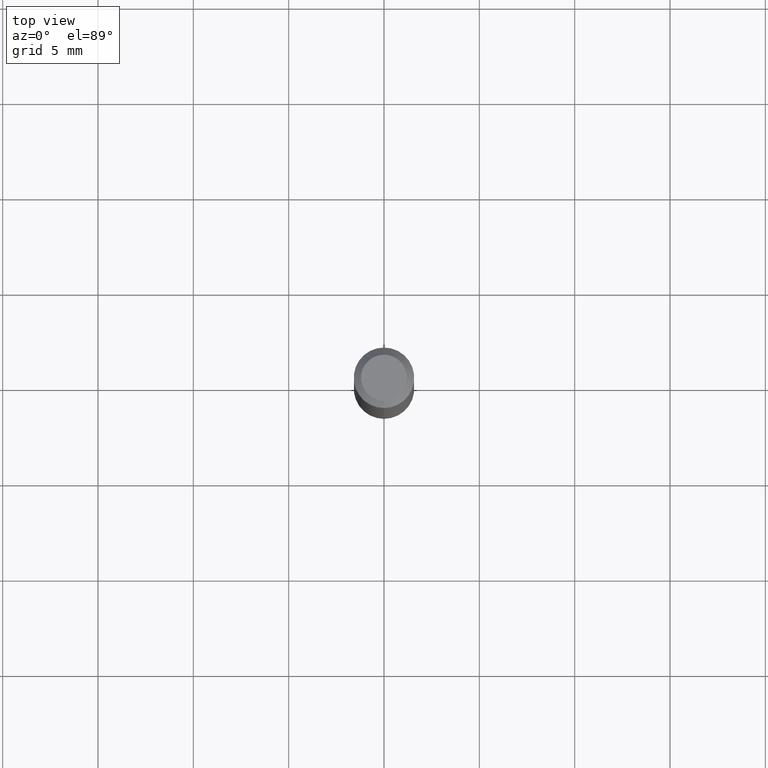
[diagram: clean part render]
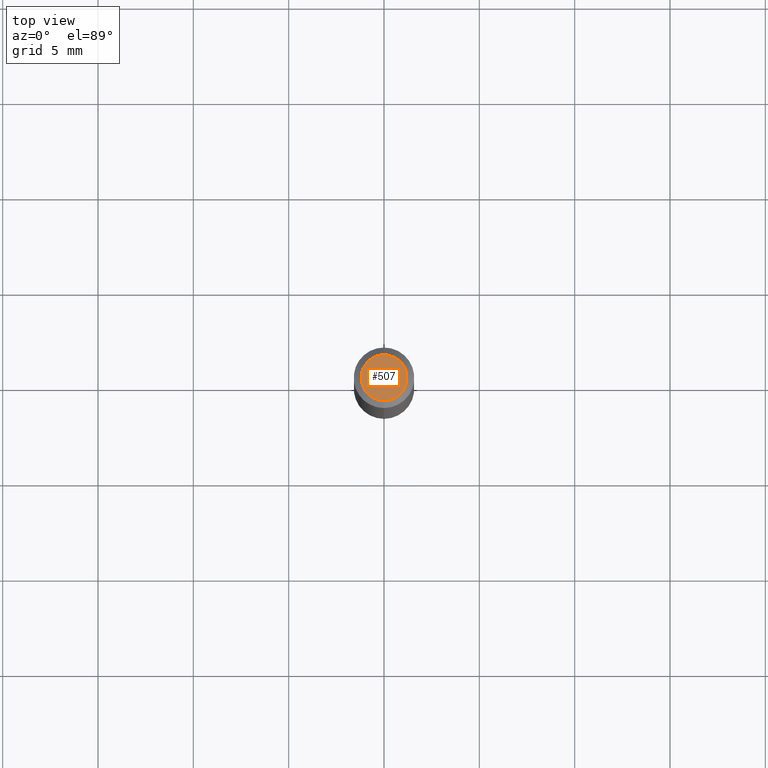
[diagram: same view with one face highlighted and labeled with its STEP entity id]
A machine part, top view. The second image highlights one B-rep face of the part: STEP entity #507.
In plain terms, the highlighted planar face has unit normal (0, -0, -1).
Its self-contained STEP definition (entity closure, byte-faithful):
#1 = VERTEX_POINT ( 'NONE', #444 ) ;
#6 = DIRECTION ( 'NONE',  ( -2.445432708408292326E-29, 3.491533032914144486E-15, 1.000000000000000000 ) ) ;
#39 = CARTESIAN_POINT ( 'NONE',  ( -3.773273898774340269E-16, -0.04750000000000000749, 4.390350738982206831E-16 ) ) ;
#51 = AXIS2_PLACEMENT_3D ( 'NONE', #253, #330, #298 ) ;
#74 = EDGE_LOOP ( 'NONE', ( #421, #107 ) ) ;
#93 = PLANE ( 'NONE',  #210 ) ;
#98 = DIRECTION ( 'NONE',  ( 6.982962677686265922E-15, 1.000000000000000000, -3.491533032914144486E-15 ) ) ;
#107 = ORIENTED_EDGE ( 'NONE', *, *, #239, .T. ) ;
#126 = AXIS2_PLACEMENT_3D ( 'NONE', #301, #6, #480 ) ;
#145 = CIRCLE ( 'NONE', #51, 0.04750000000000000749 ) ;
#179 = CARTESIAN_POINT ( 'NONE',  ( 3.316907271900976589E-16, 0.04750000000000000749, -2.925419164602250137E-17 ) ) ;
#198 = EDGE_CURVE ( 'NONE', #1, #400, #310, .T. ) ;
#210 = AXIS2_PLACEMENT_3D ( 'NONE', #179, #499, #98 ) ;
#239 = EDGE_CURVE ( 'NONE', #400, #1, #145, .T. ) ;
#253 = CARTESIAN_POINT ( 'NONE',  ( -6.680610484932883231E-45, 9.538423244268342009E-31, 2.731872548347987796E-16 ) ) ;
#298 = DIRECTION ( 'NONE',  ( -6.982962677686265133E-15, -1.000000000000000000, 3.491533032914144091E-15 ) ) ;
#301 = CARTESIAN_POINT ( 'NONE',  ( -6.680610484932883231E-45, 9.538423244268342009E-31, 2.731872548347987796E-16 ) ) ;
#310 = CIRCLE ( 'NONE', #126, 0.04750000000000000749 ) ;
#330 = DIRECTION ( 'NONE',  ( -2.445432708408292326E-29, 3.491533032914144486E-15, 1.000000000000000000 ) ) ;
#371 = FACE_OUTER_BOUND ( 'NONE', #74, .T. ) ;
#400 = VERTEX_POINT ( 'NONE', #39 ) ;
#421 = ORIENTED_EDGE ( 'NONE', *, *, #198, .T. ) ;
#444 = CARTESIAN_POINT ( 'NONE',  ( 3.840629472727447874E-16, 0.04750000000000000749, 1.073394357713768884E-16 ) ) ;
#480 = DIRECTION ( 'NONE',  ( -6.982962677686265133E-15, -1.000000000000000000, 3.491533032914144091E-15 ) ) ;
#499 = DIRECTION ( 'NONE',  ( 2.445432708408292046E-29, -3.491533032914144486E-15, -1.000000000000000000 ) ) ;
#507 = ADVANCED_FACE ( 'NONE', ( #371 ), #93, .F. ) ;